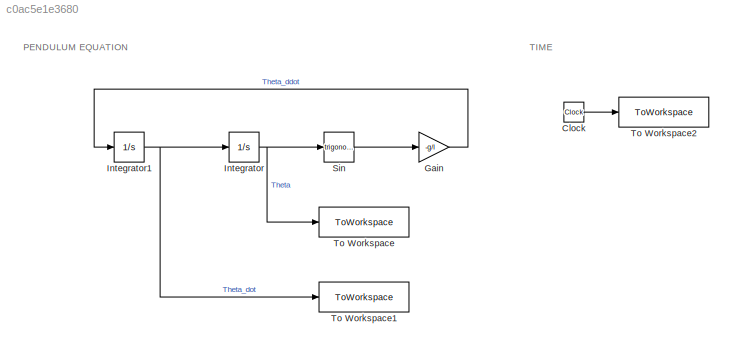
MODEL slx_c0ac5e1e3680
KIND model
CONFIG AbsTol = auto
CONFIG EnableMultiTasking = off
CONFIG FixedStep = 0.1
CONFIG MaxStep = auto
CONFIG MinStep = auto
CONFIG RelTol = 1e-3
CONFIG SampleTimeConstraint = Unconstrained
CONFIG SolverName = FixedStepAuto
CONFIG StartTime = t0
CONFIG StopTime = tf
BLOCK [Clock] Clock
BLOCK [Gain] Gain
  Gain = -g/l
BLOCK [Integrator] Integrator
  InitialCondition = theta0
BLOCK [Integrator] Integrator1
  InitialCondition = theta_dot0
BLOCK [Trigonometry] Sin
BLOCK [ToWorkspace] To Workspace
  FixptAsFi = on
  MaxDataPoints = inf
  SampleTime = -1
  SaveFormat = Timeseries
  VariableName = Theta
BLOCK [ToWorkspace] To Workspace1
  FixptAsFi = on
  MaxDataPoints = inf
  SampleTime = -1
  SaveFormat = Timeseries
  VariableName = Theta_dot
BLOCK [ToWorkspace] To Workspace2
  FixptAsFi = on
  MaxDataPoints = inf
  SampleTime = -1
  SaveFormat = Timeseries
  VariableName = time
ANNOTATION (root): PENDULUM EQUATION
ANNOTATION (root): TIME
LINE Clock:1 -> To Workspace2:1
LINE Gain:1 -> Integrator1:1
NET Integrator1:1 -> Integrator:1, To Workspace1:1
NET Integrator:1 -> Sin:1, To Workspace:1
LINE Sin:1 -> Gain:1
note: NET lines group one-source signal fan-out (src -> all destinations, sorted); 1:1 wires keep LINE
